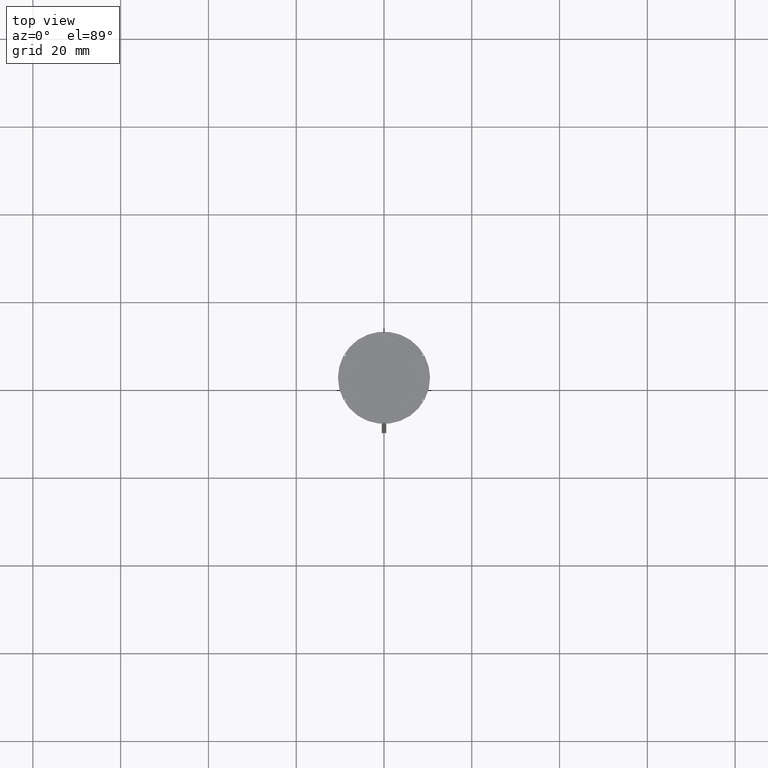
[diagram: clean part render]
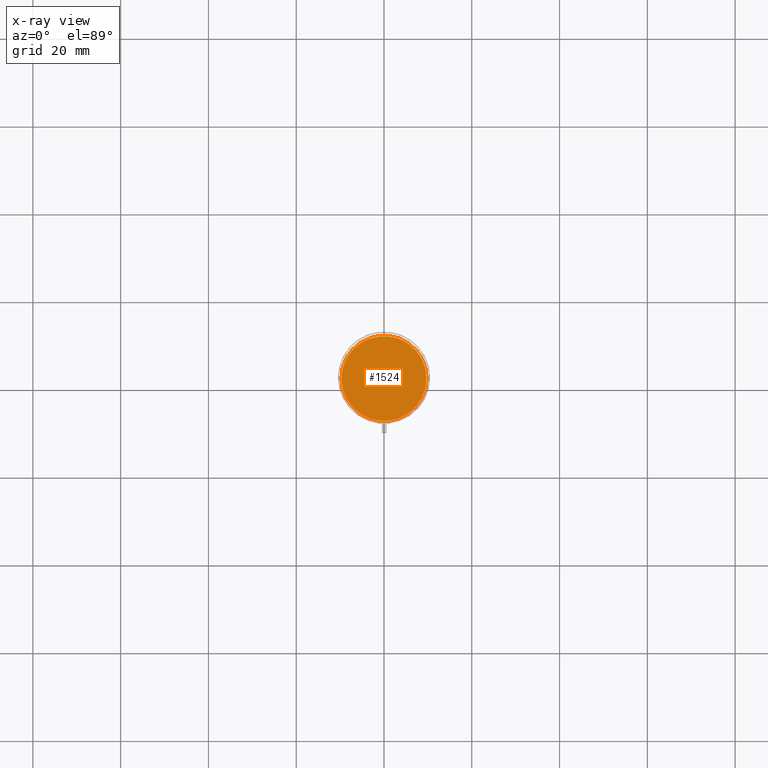
[diagram: x-ray — body ghosted, one internal face saturated and labeled with its STEP entity id]
A machine part, top view, then the same camera in x-ray: the body is ghosted and one INTERNAL B-rep face — a face not visible from any outside direction — is saturated and labeled: STEP entity #1524.
In plain terms, the highlighted planar face has unit normal (0, 0, -1).
Its self-contained STEP definition (entity closure, byte-faithful):
#40 = DIRECTION ( 'NONE',  ( -0.000000000000000000, -0.000000000000000000, 1.000000000000000000 ) ) ;
#197 = EDGE_CURVE ( 'NONE', #1198, #1090, #354, .T. ) ;
#354 = CIRCLE ( 'NONE', #2191, 9.700000000000002842 ) ;
#413 = ORIENTED_EDGE ( 'NONE', *, *, #2155, .T. ) ;
#467 = DIRECTION ( 'NONE',  ( -0.000000000000000000, -0.000000000000000000, 1.000000000000000000 ) ) ;
#501 = CARTESIAN_POINT ( 'NONE',  ( -9.700000000000002842, 0.000000000000000000, -12.00000000000000000 ) ) ;
#613 = DIRECTION ( 'NONE',  ( -1.000000000000000000, 0.000000000000000000, 0.000000000000000000 ) ) ;
#1090 = VERTEX_POINT ( 'NONE', #1881 ) ;
#1198 = VERTEX_POINT ( 'NONE', #501 ) ;
#1204 = AXIS2_PLACEMENT_3D ( 'NONE', #1749, #1556, #1384 ) ;
#1221 = DIRECTION ( 'NONE',  ( -1.000000000000000000, 0.000000000000000000, 0.000000000000000000 ) ) ;
#1265 = CARTESIAN_POINT ( 'NONE',  ( 0.000000000000000000, 0.000000000000000000, -12.00000000000000000 ) ) ;
#1384 = DIRECTION ( 'NONE',  ( -1.000000000000000000, 0.000000000000000000, -0.000000000000000000 ) ) ;
#1524 = ADVANCED_FACE ( 'NONE', ( #2369 ), #1950, .F. ) ;
#1556 = DIRECTION ( 'NONE',  ( 0.000000000000000000, 0.000000000000000000, -1.000000000000000000 ) ) ;
#1618 = AXIS2_PLACEMENT_3D ( 'NONE', #1265, #40, #613 ) ;
#1749 = CARTESIAN_POINT ( 'NONE',  ( 0.000000000000000000, 0.000000000000000000, -12.00000000000000000 ) ) ;
#1881 = CARTESIAN_POINT ( 'NONE',  ( 9.700000000000002842, 1.206277097160143024E-15, -12.00000000000000000 ) ) ;
#1950 = PLANE ( 'NONE',  #1204 ) ;
#2155 = EDGE_CURVE ( 'NONE', #1090, #1198, #2508, .T. ) ;
#2191 = AXIS2_PLACEMENT_3D ( 'NONE', #2215, #467, #1221 ) ;
#2209 = EDGE_LOOP ( 'NONE', ( #2259, #413 ) ) ;
#2215 = CARTESIAN_POINT ( 'NONE',  ( 0.000000000000000000, 0.000000000000000000, -12.00000000000000000 ) ) ;
#2259 = ORIENTED_EDGE ( 'NONE', *, *, #197, .T. ) ;
#2369 = FACE_OUTER_BOUND ( 'NONE', #2209, .T. ) ;
#2508 = CIRCLE ( 'NONE', #1618, 9.700000000000002842 ) ;